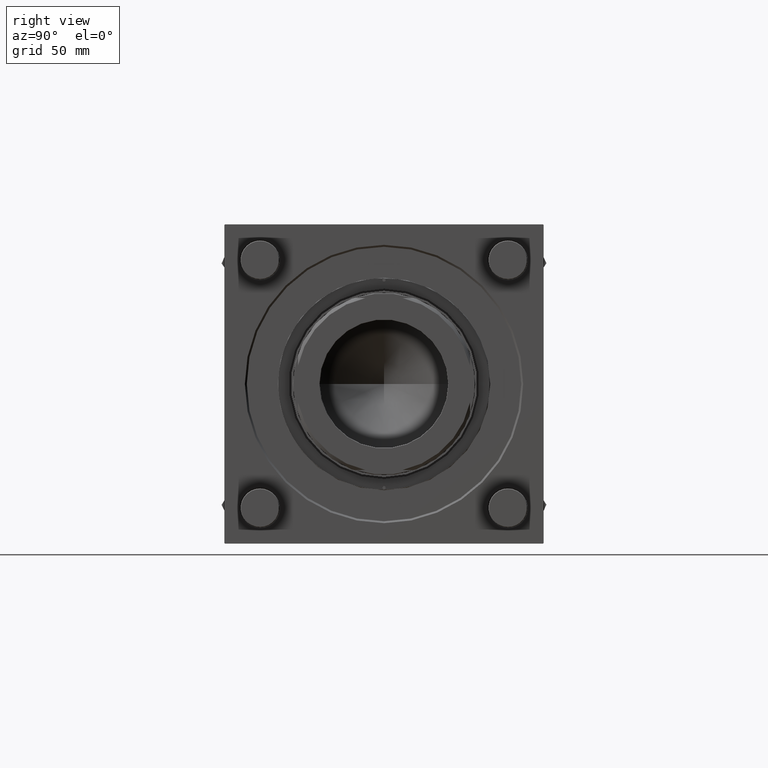
[diagram: clean part render]
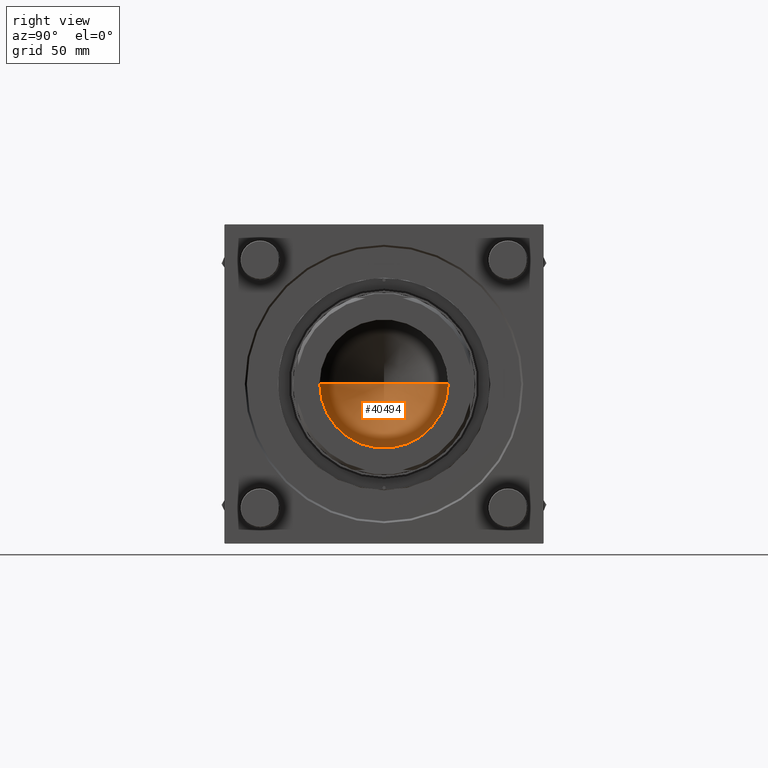
[diagram: same view with one face highlighted and labeled with its STEP entity id]
A machine part, right view. The second image highlights one B-rep face of the part: STEP entity #40494.
In plain terms, the highlighted conical surface has half-angle 59 deg.
Its self-contained STEP definition (entity closure, byte-faithful):
#3813 = CARTESIAN_POINT ( 'NONE',  ( 49.24999999999997868, 0.000000000000000000, 128.0000000000000000 ) ) ;
#8962 = VECTOR ( 'NONE', #29603, 1000.000000000000000 ) ;
#11242 = ORIENTED_EDGE ( 'NONE', *, *, #14721, .T. ) ;
#11278 = CIRCLE ( 'NONE', #24285, 49.24999999999997868 ) ;
#11883 = LINE ( 'NONE', #42356, #8962 ) ;
#13271 = DIRECTION ( 'NONE',  ( -0.000000000000000000, -0.000000000000000000, 1.000000000000000000 ) ) ;
#13840 = CARTESIAN_POINT ( 'NONE',  ( -3.318838890392715616E-14, 0.000000000000000000, 98.40761451289262141 ) ) ;
#14698 = VERTEX_POINT ( 'NONE', #39659 ) ;
#14721 = EDGE_CURVE ( 'NONE', #14698, #25661, #11278, .T. ) ;
#16020 = ORIENTED_EDGE ( 'NONE', *, *, #55251, .F. ) ;
#16629 = CARTESIAN_POINT ( 'NONE',  ( -49.24999999999997868, 6.031385485800712357E-15, 128.0000000000000000 ) ) ;
#19143 = ORIENTED_EDGE ( 'NONE', *, *, #28454, .T. ) ;
#20700 = VECTOR ( 'NONE', #34832, 1000.000000000000000 ) ;
#24285 = AXIS2_PLACEMENT_3D ( 'NONE', #57084, #13271, #44301 ) ;
#24712 = DIRECTION ( 'NONE',  ( -0.000000000000000000, -0.000000000000000000, 1.000000000000000000 ) ) ;
#25661 = VERTEX_POINT ( 'NONE', #16629 ) ;
#28454 = EDGE_CURVE ( 'NONE', #56215, #14698, #44104, .T. ) ;
#29603 = DIRECTION ( 'NONE',  ( -0.8571673007021117785, 1.049727191138617956E-16, 0.5150380749100550437 ) ) ;
#34832 = DIRECTION ( 'NONE',  ( 0.8571673007021117785, 0.000000000000000000, 0.5150380749100550437 ) ) ;
#35764 = FACE_OUTER_BOUND ( 'NONE', #53259, .T. ) ;
#37590 = CONICAL_SURFACE ( 'NONE', #44068, 49.24999999999997868, 1.029744258676653423 ) ;
#39659 = CARTESIAN_POINT ( 'NONE',  ( 49.24999999999997868, 0.000000000000000000, 128.0000000000000000 ) ) ;
#40494 = ADVANCED_FACE ( 'NONE', ( #35764 ), #37590, .F. ) ;
#42356 = CARTESIAN_POINT ( 'NONE',  ( -49.24999999999997868, 6.031385485800712357E-15, 128.0000000000000000 ) ) ;
#44068 = AXIS2_PLACEMENT_3D ( 'NONE', #53463, #24712, #50836 ) ;
#44104 = LINE ( 'NONE', #3813, #20700 ) ;
#44301 = DIRECTION ( 'NONE',  ( 1.000000000000000000, 0.000000000000000000, 0.000000000000000000 ) ) ;
#50836 = DIRECTION ( 'NONE',  ( 1.000000000000000000, 0.000000000000000000, 0.000000000000000000 ) ) ;
#53259 = EDGE_LOOP ( 'NONE', ( #16020, #19143, #11242 ) ) ;
#53463 = CARTESIAN_POINT ( 'NONE',  ( 0.000000000000000000, 0.000000000000000000, 128.0000000000000000 ) ) ;
#55251 = EDGE_CURVE ( 'NONE', #56215, #25661, #11883, .T. ) ;
#56215 = VERTEX_POINT ( 'NONE', #13840 ) ;
#57084 = CARTESIAN_POINT ( 'NONE',  ( 0.000000000000000000, 0.000000000000000000, 128.0000000000000000 ) ) ;